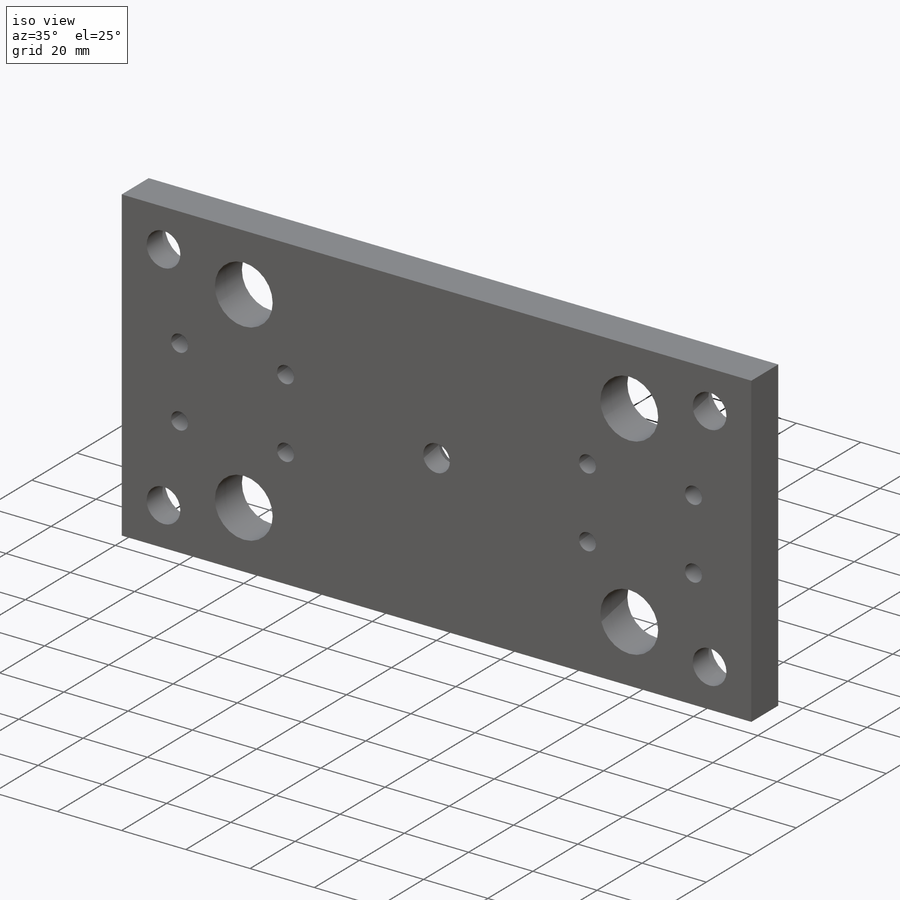
[diagram: iso view]
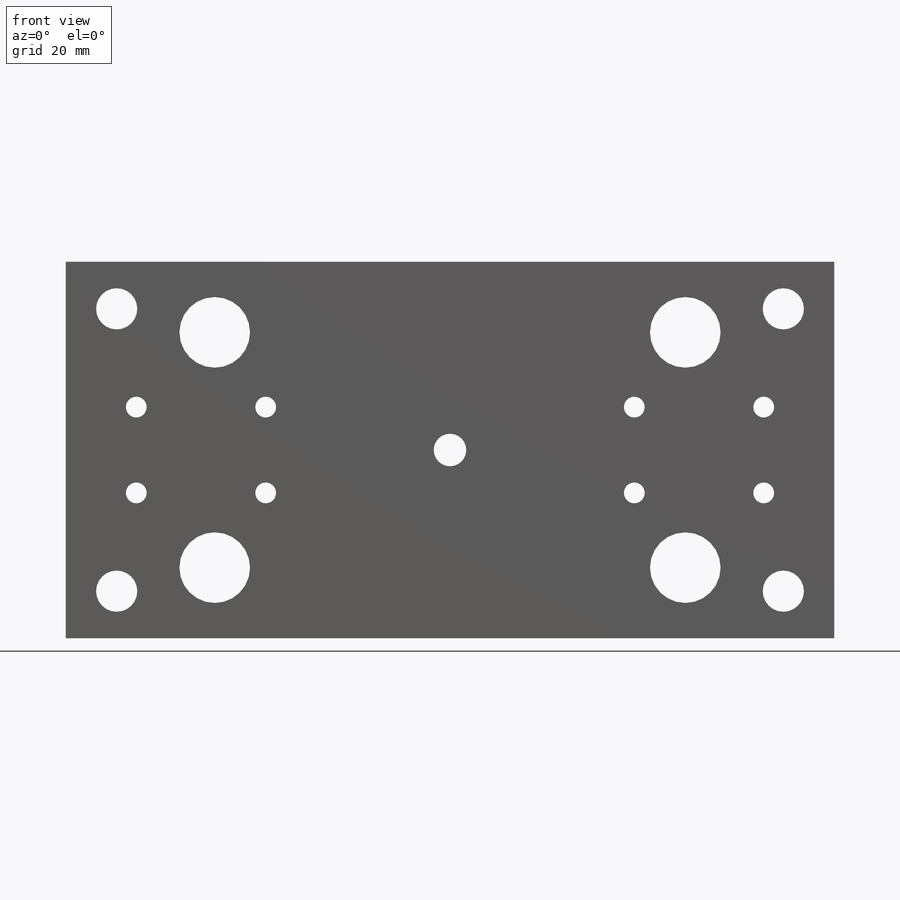
[diagram: front view]
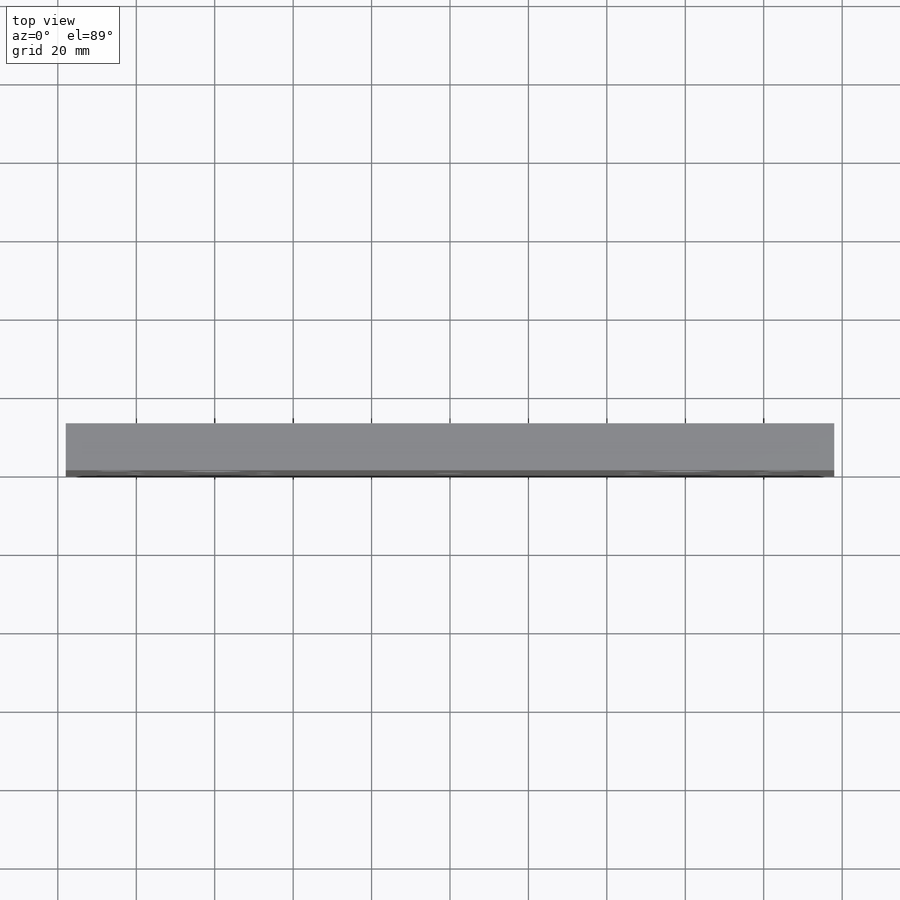
[diagram: top view]
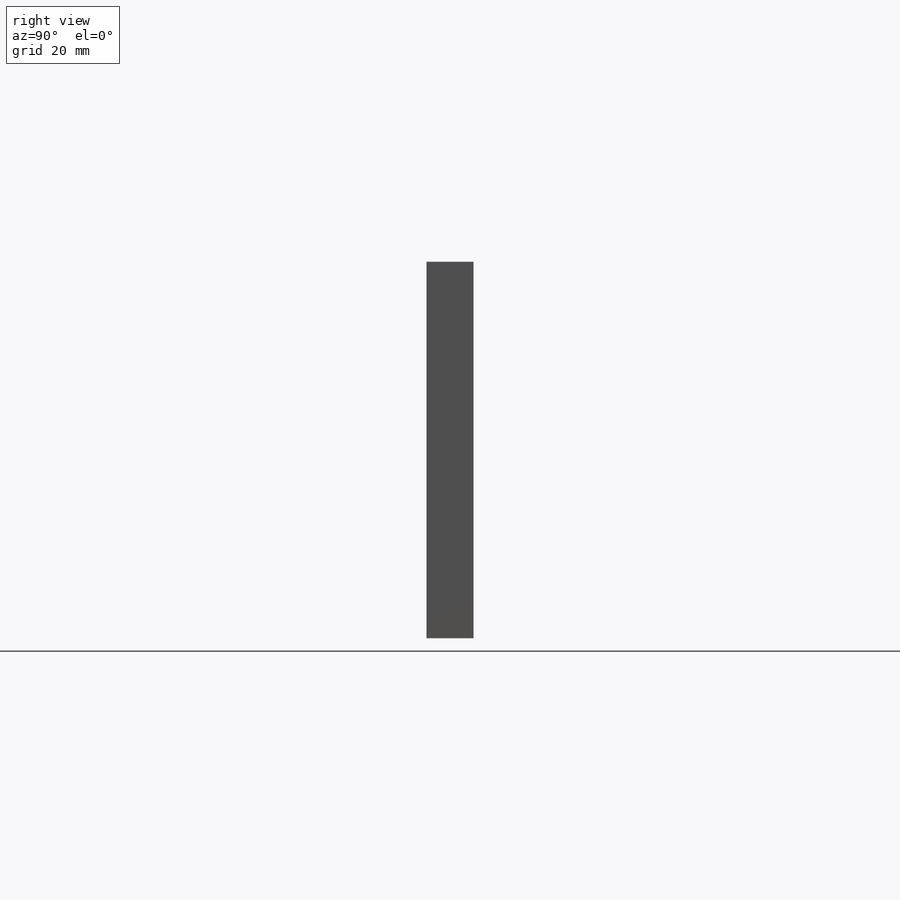
[diagram: right view]
SOLIDWORKS PART (.sldprt)
format: sldprt  version: not decoded by parser v0  size: 306,688 bytes
history: native  units: mm
features: sketch x9, hole x4, material x1, extrude x1 (+11 scaffold rows collapsed)
feature tree (26):
  scaffold x11  (default folders/planes/origin — collapsed)
  material  "Материал <не указан>"
  sketch  "Sketch1"  dims[D1=96.0mm D2=196.0mm]
  extrude  "Extrude1"  Depth=12mm
  hole  "CBORE for 10 mm Core Pins1"  [1 undecoded]
  sketch  "Sketch3"
  sketch  "Sketch2"  dims[hole-wizard template sketch: 41 standard entries collapsed; hole parameters kept: c12.Диаметр сквозного отверстия=10.5mm c12.Глубина сквозного отверстия=12.0mm c12.Диаметр цековки=16.0mm c12.Глубина цековки=5.0mm]
  hole  "CBORE for 5 mm Core Pins1"  [1 undecoded]
  sketch  "Sketch5"
  sketch  "Sketch4"  dims[hole-wizard template sketch: 41 standard entries collapsed; hole parameters kept: c12.Диаметр сквозного отверстия=5.3mm c12.Глубина сквозного отверстия=12.0mm c12.Диаметр цековки=11.0mm c12.Глубина цековки=3.0mm]
  hole  "CBORE for 8 mm Core Pins1"  [1 undecoded]
  sketch  "Sketch7"
  sketch  "Sketch6"  dims[hole-wizard template sketch: 41 standard entries collapsed; hole parameters kept: c12.Диаметр сквозного отверстия=8.3mm c12.Глубина сквозного отверстия=12.0mm c12.Диаметр цековки=15.0mm c12.Глубина цековки=5.0mm]
  hole  "Ø20.0 (20) Diameter Hole1"  [1 undecoded]
  sketch  "Sketch9"
  sketch  "Sketch8"  dims[hole-wizard template sketch: 46 standard entries collapsed; hole parameters kept: c15.Диаметр отверстия=18.0mm c15.Глубина отверстия=12.0mm c15.D3=~14.816244mm c15.Угол заточки сверла=118.0deg]
decode coverage: 6 of 14 modeling features carry decoded parameters
note: ~ marks probable driven/reference dimensions
note: 4 parameter values undecoded
summary: no parameter record found for 4 features
note: suppression state not decoded; provenance and decode notes live in map.json
